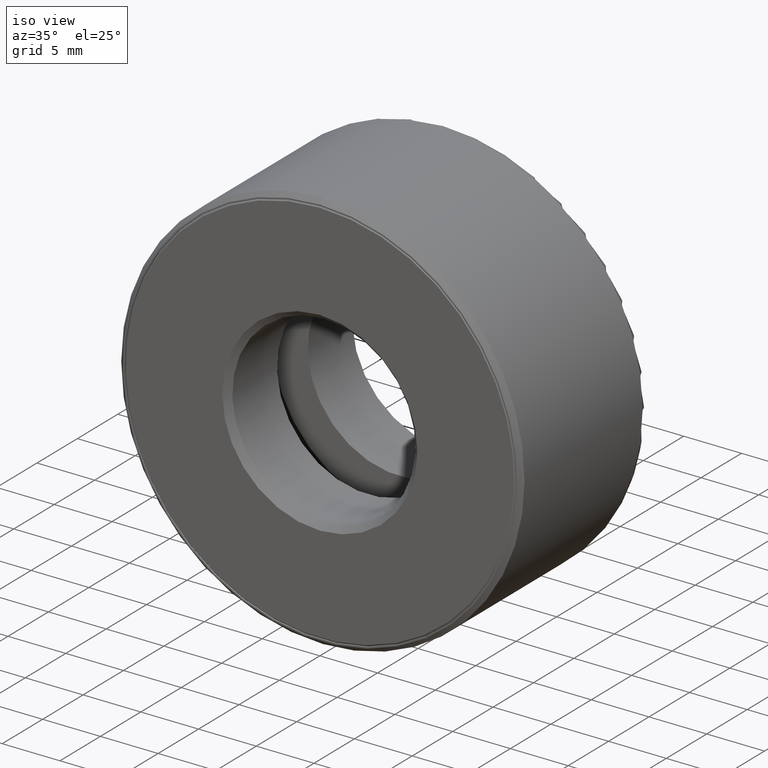
[diagram: clean part render]
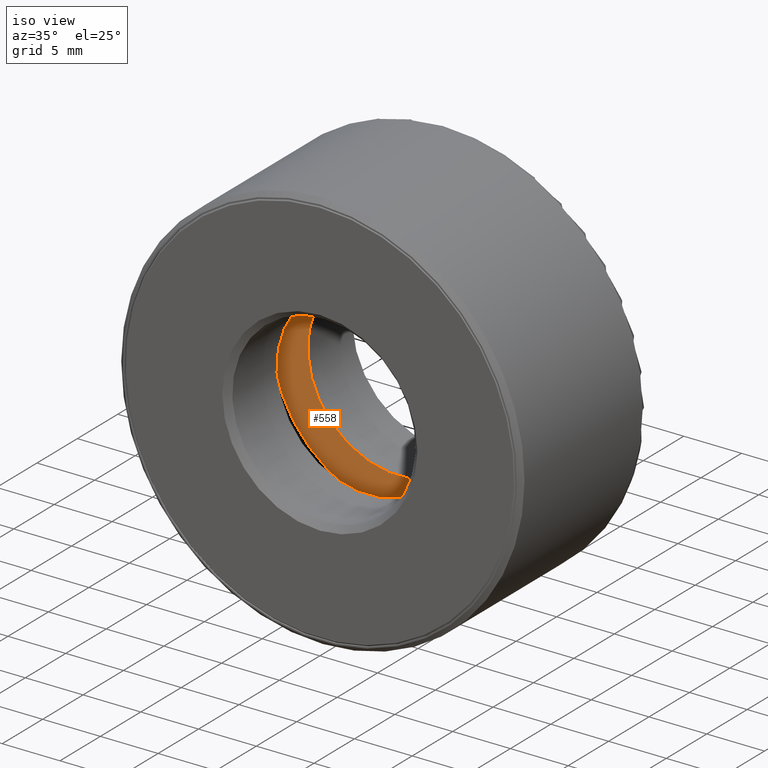
[diagram: same view with one face highlighted and labeled with its STEP entity id]
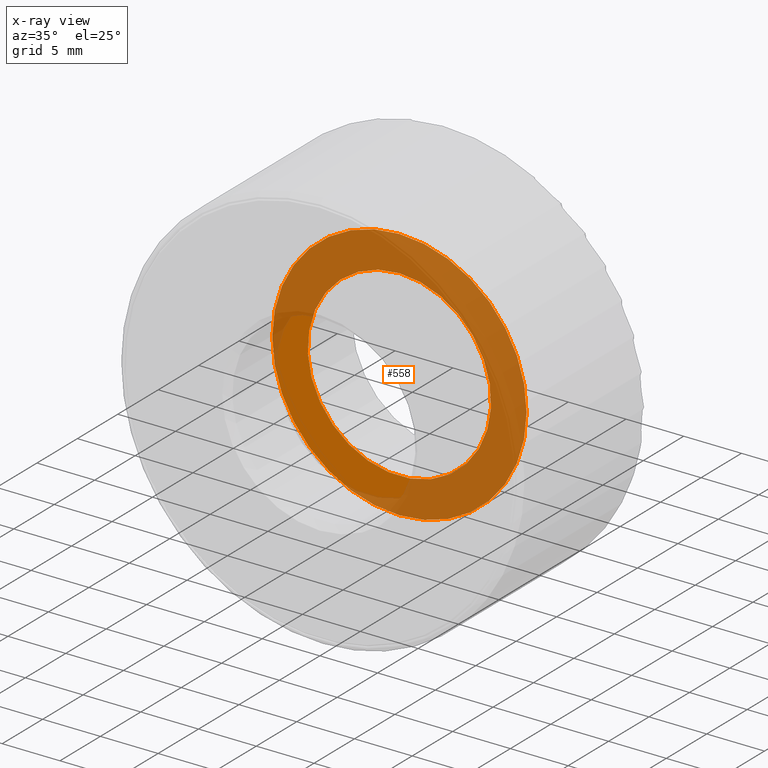
[diagram: x-ray of the same camera — body ghosted, the highlighted face saturated]
A machine part, iso view. The second image highlights one B-rep face of the part: STEP entity #558.
The next image is the same camera in x-ray: the body ghosted, the highlighted face saturated — about 74% of this face is hidden behind the body in this view.
In plain terms, the highlighted planar face has unit normal (0, -1, 0).
Its self-contained STEP definition (entity closure, byte-faithful):
#56 = DIRECTION ( 'NONE',  ( 0.0000000000000000000, 0.0000000000000000000, 1.000000000000000000 ) ) ;
#106 = EDGE_LOOP ( 'NONE', ( #520 ) ) ;
#143 = CARTESIAN_POINT ( 'NONE',  ( 0.0000000000000000000, 0.3874999999999999600, 0.0000000000000000000 ) ) ;
#149 = AXIS2_PLACEMENT_3D ( 'NONE', #557, #499, #598 ) ;
#197 = FACE_OUTER_BOUND ( 'NONE', #106, .T. ) ;
#210 = FACE_BOUND ( 'NONE', #575, .T. ) ;
#269 = EDGE_CURVE ( 'NONE', #498, #498, #405, .T. ) ;
#286 = VERTEX_POINT ( 'NONE', #486 ) ;
#290 = AXIS2_PLACEMENT_3D ( 'NONE', #143, #566, #56 ) ;
#296 = CARTESIAN_POINT ( 'NONE',  ( 0.0000000000000000000, 0.3874999999999999600, 0.0000000000000000000 ) ) ;
#298 = CARTESIAN_POINT ( 'NONE',  ( 0.0000000000000000000, 0.3874999999999999600, 0.3125000000000000000 ) ) ;
#405 = CIRCLE ( 'NONE', #149, 0.3125000000000000000 ) ;
#430 = ORIENTED_EDGE ( 'NONE', *, *, #269, .T. ) ;
#438 = DIRECTION ( 'NONE',  ( 0.0000000000000000000, -0.0000000000000000000, -1.000000000000000000 ) ) ;
#463 = EDGE_CURVE ( 'NONE', #286, #286, #508, .T. ) ;
#476 = PLANE ( 'NONE',  #551 ) ;
#486 = CARTESIAN_POINT ( 'NONE',  ( 0.0000000000000000000, 0.3874999999999999600, 0.4334999999999998900 ) ) ;
#498 = VERTEX_POINT ( 'NONE', #298 ) ;
#499 = DIRECTION ( 'NONE',  ( -0.0000000000000000000, 1.000000000000000000, -0.0000000000000000000 ) ) ;
#508 = CIRCLE ( 'NONE', #290, 0.4334999999999998900 ) ;
#520 = ORIENTED_EDGE ( 'NONE', *, *, #463, .F. ) ;
#551 = AXIS2_PLACEMENT_3D ( 'NONE', #296, #574, #438 ) ;
#557 = CARTESIAN_POINT ( 'NONE',  ( 0.0000000000000000000, 0.3874999999999999600, 0.0000000000000000000 ) ) ;
#558 = ADVANCED_FACE ( 'NONE', ( #210, #197 ), #476, .T. ) ;
#566 = DIRECTION ( 'NONE',  ( -0.0000000000000000000, 1.000000000000000000, -0.0000000000000000000 ) ) ;
#574 = DIRECTION ( 'NONE',  ( 0.0000000000000000000, -1.000000000000000000, 0.0000000000000000000 ) ) ;
#575 = EDGE_LOOP ( 'NONE', ( #430 ) ) ;
#598 = DIRECTION ( 'NONE',  ( 0.0000000000000000000, 0.0000000000000000000, 1.000000000000000000 ) ) ;